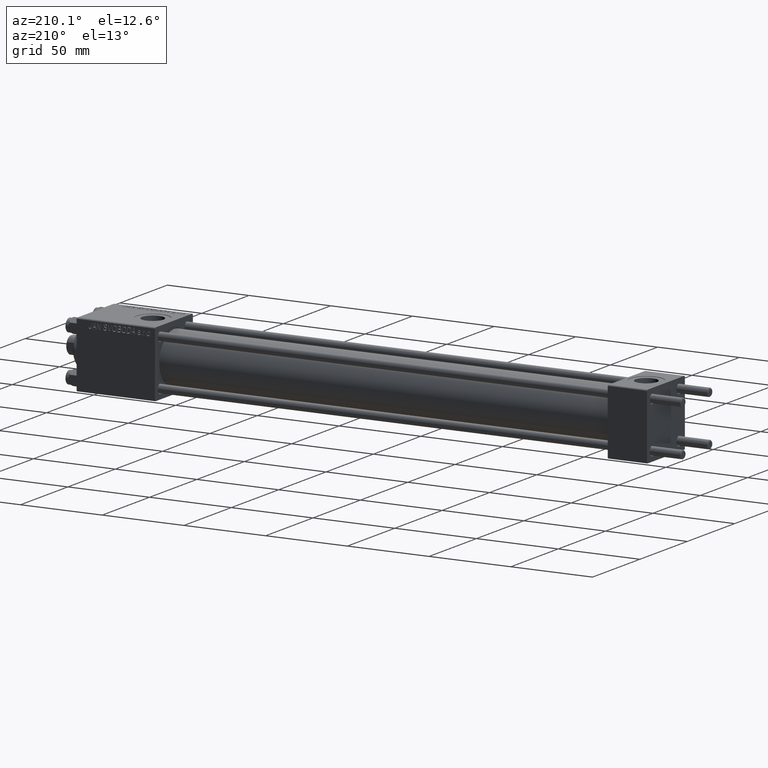
[diagram: clean part render]
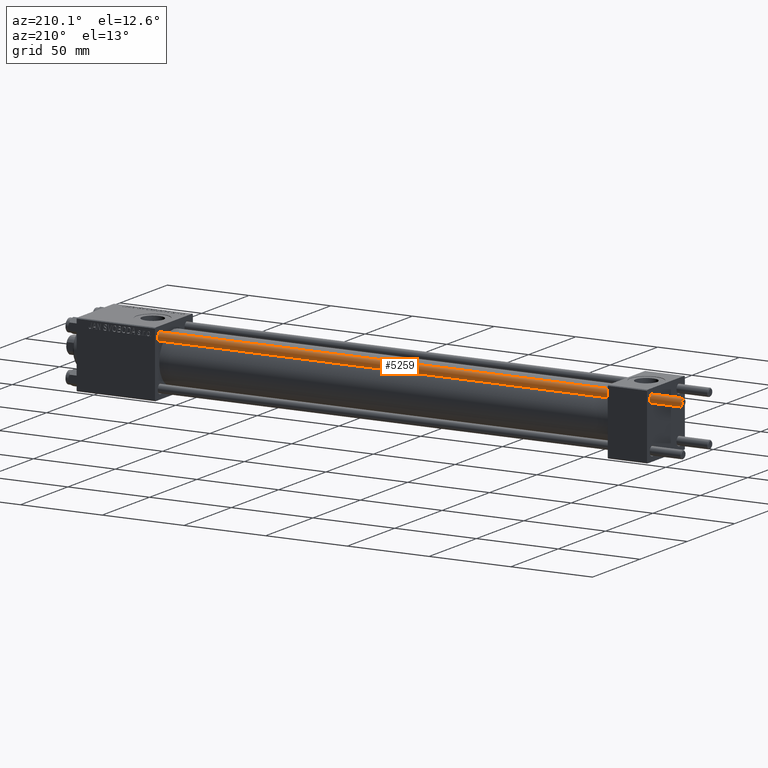
[diagram: same view with one face highlighted and labeled with its STEP entity id]
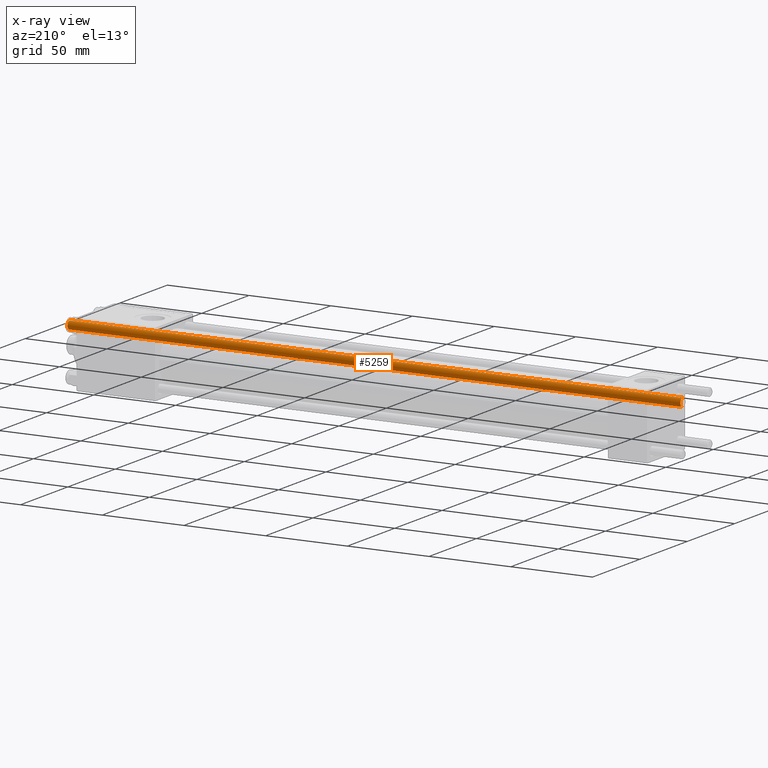
[diagram: x-ray of the same camera — body ghosted, the highlighted face saturated]
A machine part, auxiliary view. The second image highlights one B-rep face of the part: STEP entity #5259.
The next image is the same camera in x-ray: the body ghosted, the highlighted face saturated — about 0% of this face is hidden behind the body in this view.
In plain terms, the highlighted cylindrical surface (edge-blend (fillet) strip) has radius 2.5 mm, axis along (-1, -0, -0).
Its self-contained STEP definition (entity closure, byte-faithful):
#709 = VERTEX_POINT ( 'NONE', #37376 ) ;
#2215 = CARTESIAN_POINT ( 'NONE',  ( -2.500000000000000000, 0.000000000000000000, 376.0000000000000000 ) ) ;
#2610 = CARTESIAN_POINT ( 'NONE',  ( 0.000000000000000000, 0.000000000000000000, 0.4999999999999449329 ) ) ;
#2720 = EDGE_LOOP ( 'NONE', ( #43133, #12217, #35396, #5096 ) ) ;
#3331 = DIRECTION ( 'NONE',  ( -0.000000000000000000, -0.000000000000000000, -1.000000000000000000 ) ) ;
#3616 = VERTEX_POINT ( 'NONE', #47192 ) ;
#3639 = VECTOR ( 'NONE', #3331, 1000.000000000000000 ) ;
#3787 = DIRECTION ( 'NONE',  ( -1.000000000000000000, 0.000000000000000000, 0.000000000000000000 ) ) ;
#5096 = ORIENTED_EDGE ( 'NONE', *, *, #36349, .F. ) ;
#5259 = ADVANCED_FACE ( 'NONE', ( #13851 ), #29203, .T. ) ;
#6025 = AXIS2_PLACEMENT_3D ( 'NONE', #43328, #8833, #39555 ) ;
#8833 = DIRECTION ( 'NONE',  ( 0.000000000000000000, 0.000000000000000000, -1.000000000000000000 ) ) ;
#9622 = AXIS2_PLACEMENT_3D ( 'NONE', #29707, #18908, #3787 ) ;
#9641 = VERTEX_POINT ( 'NONE', #41814 ) ;
#10611 = LINE ( 'NONE', #33545, #3639 ) ;
#10844 = CIRCLE ( 'NONE', #28528, 2.500000000000000000 ) ;
#12009 = CARTESIAN_POINT ( 'NONE',  ( -2.500000000000000000, 0.000000000000000000, 0.4999999999999449329 ) ) ;
#12217 = ORIENTED_EDGE ( 'NONE', *, *, #25825, .T. ) ;
#13851 = FACE_OUTER_BOUND ( 'NONE', #2720, .T. ) ;
#14586 = VERTEX_POINT ( 'NONE', #12009 ) ;
#18908 = DIRECTION ( 'NONE',  ( -0.000000000000000000, -0.000000000000000000, -1.000000000000000000 ) ) ;
#21361 = LINE ( 'NONE', #2215, #33312 ) ;
#21764 = EDGE_CURVE ( 'NONE', #3616, #14586, #10844, .T. ) ;
#25825 = EDGE_CURVE ( 'NONE', #9641, #3616, #10611, .T. ) ;
#25976 = EDGE_CURVE ( 'NONE', #709, #9641, #30189, .T. ) ;
#28528 = AXIS2_PLACEMENT_3D ( 'NONE', #2610, #41641, #48434 ) ;
#29203 = CYLINDRICAL_SURFACE ( 'NONE', #9622, 2.500000000000000000 ) ;
#29707 = CARTESIAN_POINT ( 'NONE',  ( 0.000000000000000000, 0.000000000000000000, 376.0000000000000000 ) ) ;
#30189 = CIRCLE ( 'NONE', #6025, 2.500000000000000000 ) ;
#33312 = VECTOR ( 'NONE', #48040, 1000.000000000000000 ) ;
#33545 = CARTESIAN_POINT ( 'NONE',  ( 2.500000000000000000, 3.061616997868383141E-16, 376.0000000000000000 ) ) ;
#35396 = ORIENTED_EDGE ( 'NONE', *, *, #21764, .T. ) ;
#36349 = EDGE_CURVE ( 'NONE', #709, #14586, #21361, .T. ) ;
#37376 = CARTESIAN_POINT ( 'NONE',  ( -2.500000000000000000, 0.000000000000000000, 375.5000000000000568 ) ) ;
#39555 = DIRECTION ( 'NONE',  ( 1.000000000000000000, 0.000000000000000000, 0.000000000000000000 ) ) ;
#41641 = DIRECTION ( 'NONE',  ( -0.000000000000000000, -0.000000000000000000, 1.000000000000000000 ) ) ;
#41814 = CARTESIAN_POINT ( 'NONE',  ( 2.500000000000000000, 3.061616997868383141E-16, 375.5000000000000568 ) ) ;
#43133 = ORIENTED_EDGE ( 'NONE', *, *, #25976, .T. ) ;
#43328 = CARTESIAN_POINT ( 'NONE',  ( 0.000000000000000000, 0.000000000000000000, 375.5000000000000568 ) ) ;
#47192 = CARTESIAN_POINT ( 'NONE',  ( 2.500000000000000000, 3.061616997868383141E-16, 0.4999999999999449329 ) ) ;
#48040 = DIRECTION ( 'NONE',  ( -0.000000000000000000, -0.000000000000000000, -1.000000000000000000 ) ) ;
#48434 = DIRECTION ( 'NONE',  ( 1.000000000000000000, 0.000000000000000000, 0.000000000000000000 ) ) ;